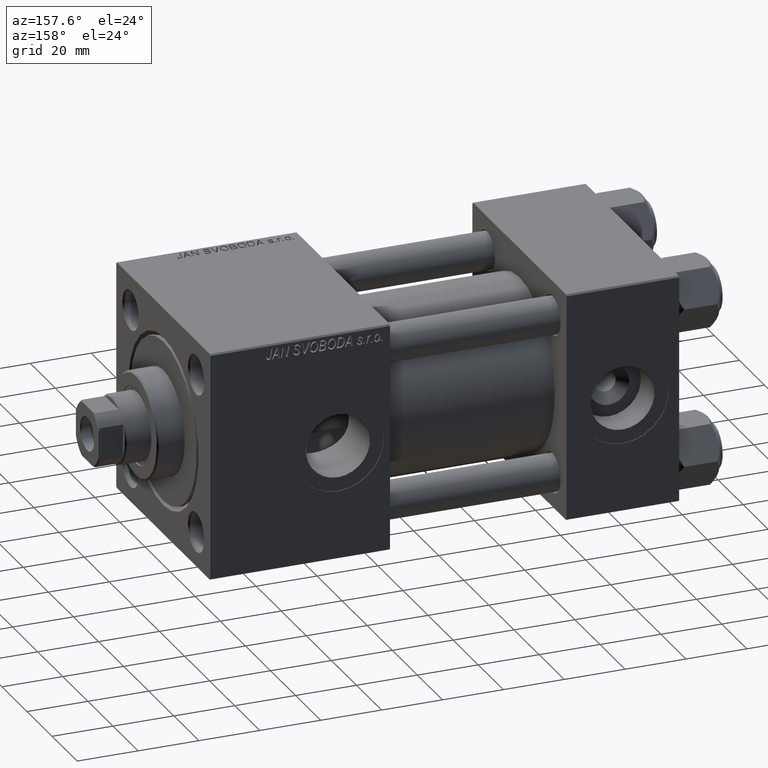
[diagram: clean part render]
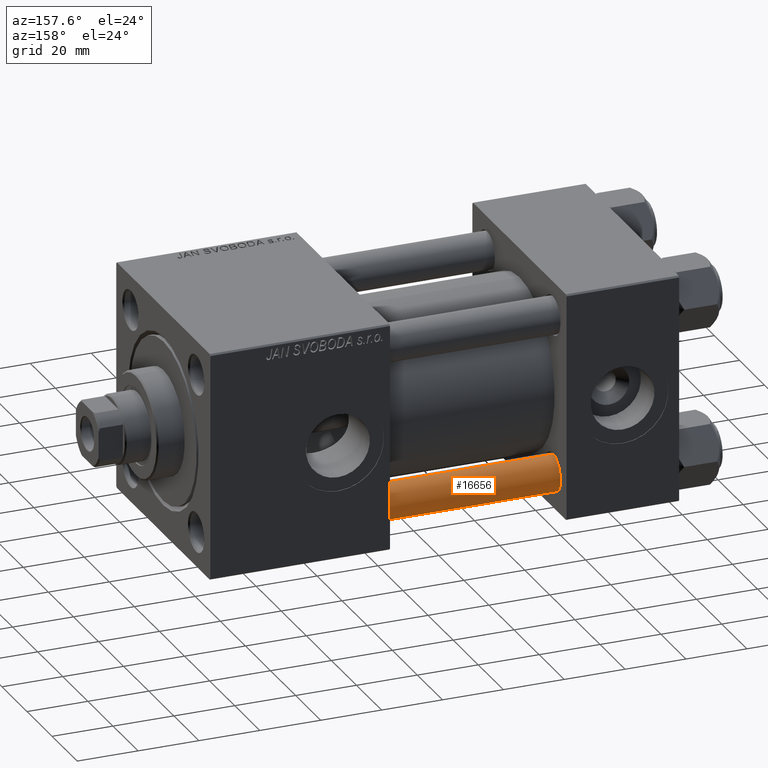
[diagram: same view with one face highlighted and labeled with its STEP entity id]
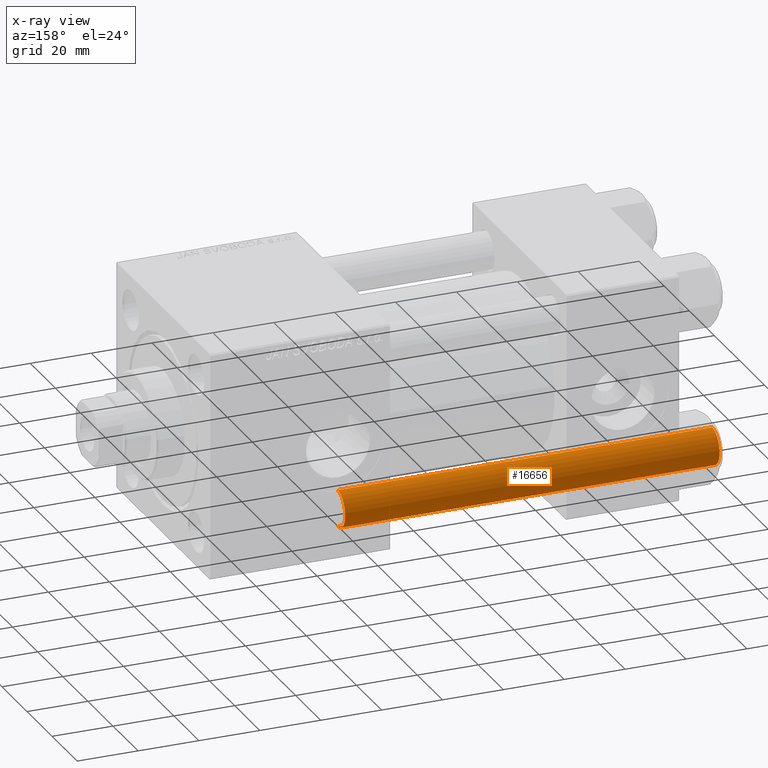
[diagram: x-ray of the same camera — body ghosted, the highlighted face saturated]
A machine part, auxiliary view. The second image highlights one B-rep face of the part: STEP entity #16656.
The next image is the same camera in x-ray: the body ghosted, the highlighted face saturated — about 0% of this face is hidden behind the body in this view.
In plain terms, the highlighted cylindrical surface (edge-blend (fillet) strip) has radius 6 mm, axis along (1, -0, -0).
Its self-contained STEP definition (entity closure, byte-faithful):
#875 = FACE_OUTER_BOUND ( 'NONE', #16637, .T. ) ;
#4425 = DIRECTION ( 'NONE',  ( 1.000000000000000000, 0.000000000000000000, 0.000000000000000000 ) ) ;
#5259 = LINE ( 'NONE', #47160, #17467 ) ;
#5566 = DIRECTION ( 'NONE',  ( 1.000000000000000000, 0.000000000000000000, 0.000000000000000000 ) ) ;
#6058 = CARTESIAN_POINT ( 'NONE',  ( 0.000000000000000000, 0.000000000000000000, 0.4999999999999865663 ) ) ;
#6857 = AXIS2_PLACEMENT_3D ( 'NONE', #6058, #13669, #5566 ) ;
#10007 = CARTESIAN_POINT ( 'NONE',  ( 6.000000000000000888, 7.347880794884120722E-16, 123.5000000000000426 ) ) ;
#12049 = CARTESIAN_POINT ( 'NONE',  ( 0.000000000000000000, 0.000000000000000000, 123.5000000000000426 ) ) ;
#12778 = CYLINDRICAL_SURFACE ( 'NONE', #22175, 6.000000000000000888 ) ;
#13669 = DIRECTION ( 'NONE',  ( -0.000000000000000000, -0.000000000000000000, 1.000000000000000000 ) ) ;
#15608 = CARTESIAN_POINT ( 'NONE',  ( 0.000000000000000000, 0.000000000000000000, 124.0000000000000000 ) ) ;
#15671 = DIRECTION ( 'NONE',  ( -0.000000000000000000, -0.000000000000000000, -1.000000000000000000 ) ) ;
#16026 = AXIS2_PLACEMENT_3D ( 'NONE', #12049, #34878, #4425 ) ;
#16462 = CARTESIAN_POINT ( 'NONE',  ( -6.000000000000000888, 0.000000000000000000, 0.4999999999999865663 ) ) ;
#16637 = EDGE_LOOP ( 'NONE', ( #28211, #26234, #25008, #35356 ) ) ;
#16656 = ADVANCED_FACE ( 'NONE', ( #875 ), #12778, .T. ) ;
#17467 = VECTOR ( 'NONE', #31426, 1000.000000000000000 ) ;
#19036 = EDGE_CURVE ( 'NONE', #42221, #37514, #36057, .T. ) ;
#22175 = AXIS2_PLACEMENT_3D ( 'NONE', #15608, #35887, #43761 ) ;
#22652 = VECTOR ( 'NONE', #15671, 1000.000000000000000 ) ;
#23552 = LINE ( 'NONE', #34951, #22652 ) ;
#23594 = EDGE_CURVE ( 'NONE', #26396, #42221, #5259, .T. ) ;
#25008 = ORIENTED_EDGE ( 'NONE', *, *, #19036, .T. ) ;
#26234 = ORIENTED_EDGE ( 'NONE', *, *, #23594, .T. ) ;
#26396 = VERTEX_POINT ( 'NONE', #10007 ) ;
#27356 = CARTESIAN_POINT ( 'NONE',  ( 6.000000000000000888, 7.347880794884120722E-16, 0.4999999999999865663 ) ) ;
#28211 = ORIENTED_EDGE ( 'NONE', *, *, #29756, .T. ) ;
#29756 = EDGE_CURVE ( 'NONE', #38671, #26396, #50082, .T. ) ;
#31426 = DIRECTION ( 'NONE',  ( -0.000000000000000000, -0.000000000000000000, -1.000000000000000000 ) ) ;
#34878 = DIRECTION ( 'NONE',  ( 0.000000000000000000, 0.000000000000000000, -1.000000000000000000 ) ) ;
#34951 = CARTESIAN_POINT ( 'NONE',  ( -6.000000000000000888, 0.000000000000000000, 124.0000000000000000 ) ) ;
#35356 = ORIENTED_EDGE ( 'NONE', *, *, #37777, .F. ) ;
#35887 = DIRECTION ( 'NONE',  ( -0.000000000000000000, -0.000000000000000000, -1.000000000000000000 ) ) ;
#36057 = CIRCLE ( 'NONE', #6857, 6.000000000000000888 ) ;
#37514 = VERTEX_POINT ( 'NONE', #16462 ) ;
#37777 = EDGE_CURVE ( 'NONE', #38671, #37514, #23552, .T. ) ;
#38671 = VERTEX_POINT ( 'NONE', #44825 ) ;
#42221 = VERTEX_POINT ( 'NONE', #27356 ) ;
#43761 = DIRECTION ( 'NONE',  ( -1.000000000000000000, 0.000000000000000000, 0.000000000000000000 ) ) ;
#44825 = CARTESIAN_POINT ( 'NONE',  ( -6.000000000000000888, 0.000000000000000000, 123.5000000000000426 ) ) ;
#47160 = CARTESIAN_POINT ( 'NONE',  ( 6.000000000000000888, 7.347880794884120722E-16, 124.0000000000000000 ) ) ;
#50082 = CIRCLE ( 'NONE', #16026, 6.000000000000000888 ) ;